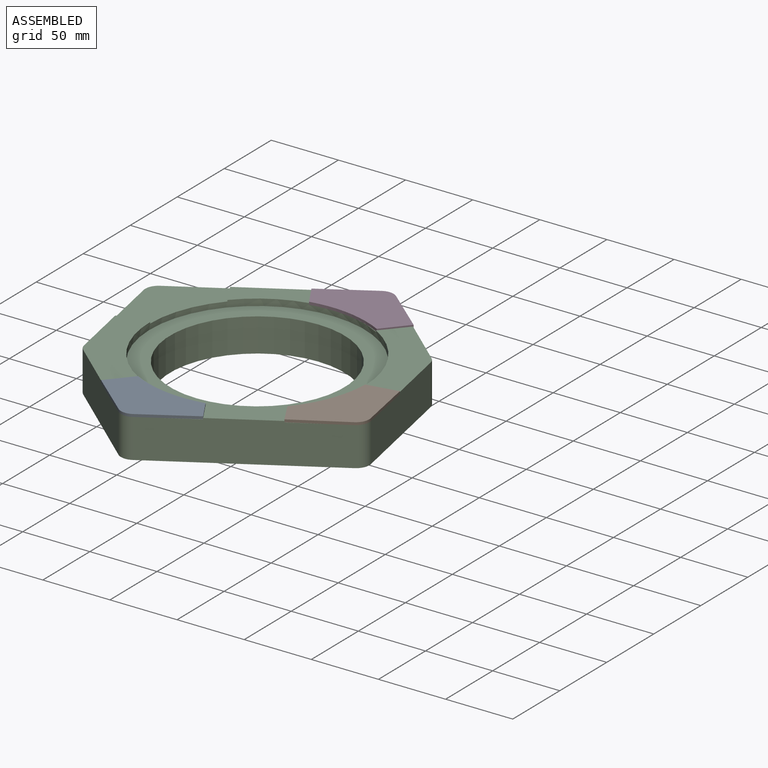
[diagram: assembled view]
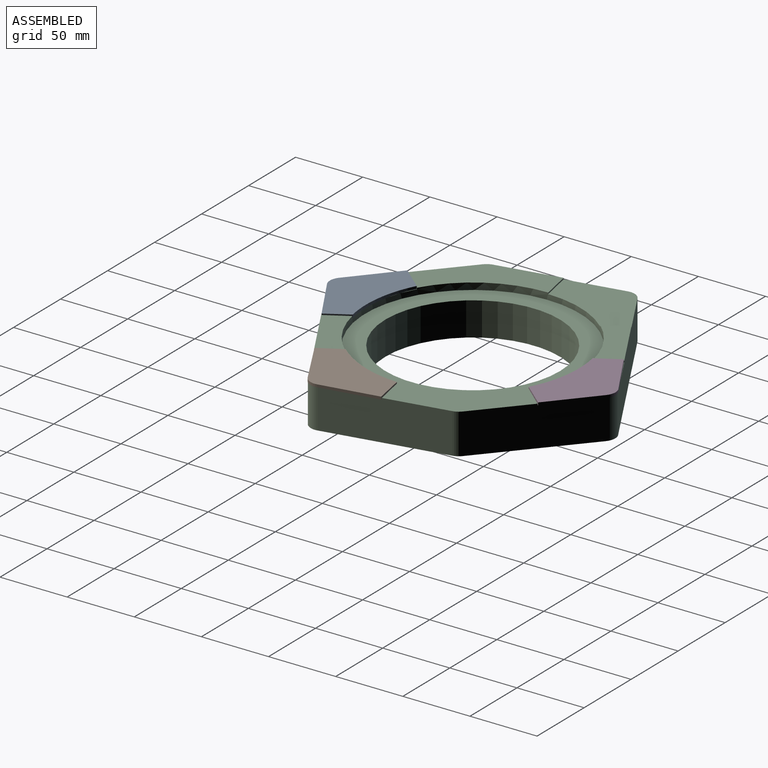
[diagram: assembled view, second angle]
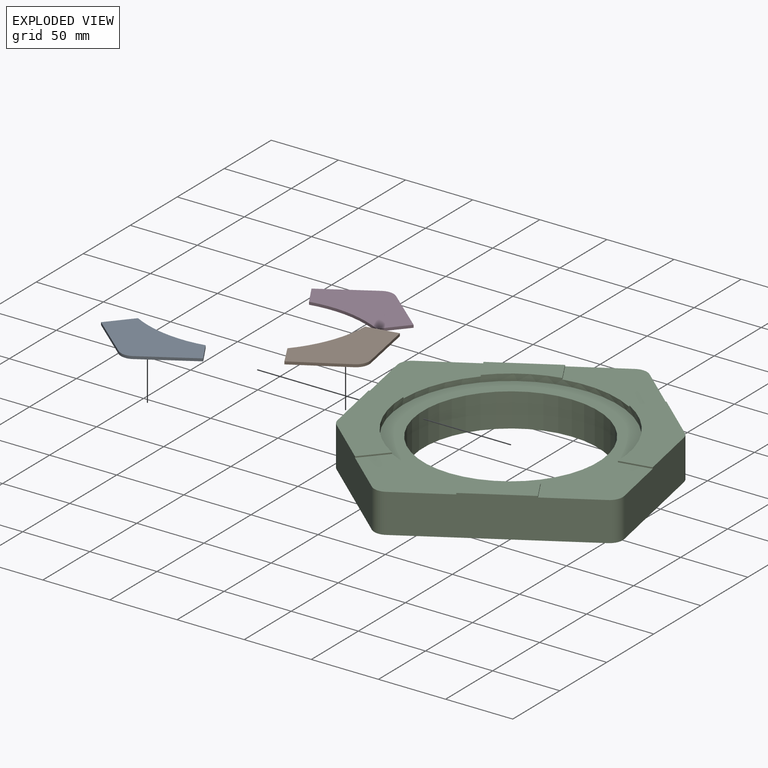
[diagram: exploded view]
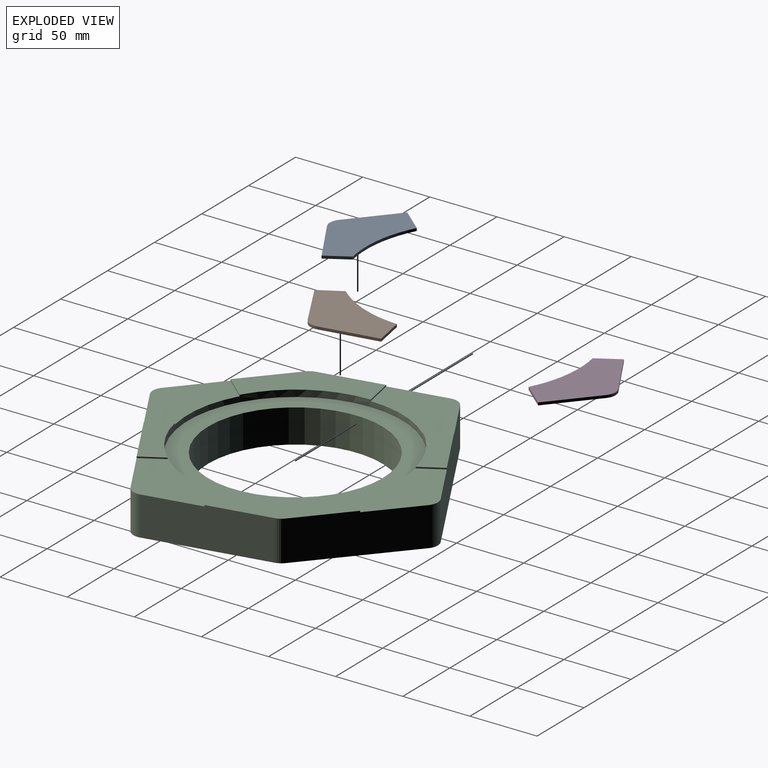
[diagram: exploded view, second angle]
ASSEMBLY  parts=4 mates=3
PART A: 8 faces, bbox 2x81.4x45.7 mm
  f0: plane 34.86x24.92mm, normal (0,-0.58,-0.81), area 85.7mm2, adj f1,f5,f6,f7
  f1: plane 18.92x13.52mm, normal (0,-0.81,0.58), area 46.5mm2, adj f0,f2,f6,f7
  f2: cylinder r=85.49mm len=56.75mm, axis (1,0,0), area 115.9mm2, adj f1,f3,f6,f7
  f3: plane 15.51x11.09mm, normal (0,0.81,0.58), area 38.1mm2, adj f2,f4,f6,f7
  f4: plane 34.86x24.92mm, normal (0,0.58,-0.81), area 85.7mm2, adj f3,f5,f6,f7
  f5: cylinder r=10mm len=11.63mm, axis (1,0,0), area 24.8mm2, adj f0,f4,f6,f7
  f6: plane 81.35x45.7mm, normal (-1,0,0), area 2178.5mm2, adj f0,f1,f2,f3,f4,f5
  f7: plane 81.35x45.7mm, normal (1,0,0), area 2178.5mm2, adj f0,f1,f2,f3,f4,f5
PART B: same geometry as A
PART C: 32 faces, bbox 213.9x190x30 mm
  f0: plane 85x30mm, normal (0.95,-0.32,0), area 2652.2mm2, adj f8,f10,f12,f14,f24,f25
  f1: plane 85x30mm, normal (0.95,0.32,0), area 2652.2mm2, adj f8,f10,f15,f17,f24,f28
  f2: plane 135.7x30mm, normal (0,1,0), area 3985.4mm2, adj f7,f10,f16,f17,f18,f20,f28,f29
  f3: plane 85x30mm, normal (-0.95,0.32,0), area 2652.2mm2, adj f6,f10,f19,f20,f26,f29
  f4: plane 85x30mm, normal (-0.95,-0.32,0), area 2652.2mm2, adj f6,f10,f21,f23,f26,f27
  f5: plane 135.7x30mm, normal (0,-1,0), area 3985.4mm2, adj f9,f10,f13,f14,f22,f23,f25,f27
  f6: plane 95.38x37.75mm, normal (0,0,1), area 2122.2mm2, adj f3,f4,f19,f21,f26,f30
  f7: plane 50x19.01mm, normal (0,0,1), area 816.1mm2, adj f2,f16,f18,f30
  f8: plane 95.38x37.75mm, normal (0,0,1), area 2122.2mm2, adj f0,f1,f12,f15,f24,f30
  f9: plane 50x19.01mm, normal (0,0,1), area 816.1mm2, adj f5,f13,f22,f30
  f10: plane 213.86x190mm, normal (0,0,-1), area 21361.6mm2, adj f0,f1,f2,f3,f4,f5,f11,f24
  f11: cylinder r=65mm len=130mm, axis (0,0,-1), area 10210.2mm2, adj f10,f31
  f12: plane 22x7.53mm, normal (-0.32,-0.95,0), area 23.3mm2, adj f0,f8,f14,f30
  f13: plane 19.01x1mm, normal (1,0,0), area 19mm2, adj f5,f9,f14,f30
  f14: plane 66.18x54.83mm, normal (0,0,1), area 2163mm2, adj f0,f5,f12,f13,f25,f30
  f15: plane 22x7.53mm, normal (-0.32,0.95,0), area 23.3mm2, adj f1,f8,f17,f30
  f16: plane 19.01x1mm, normal (1,0,0), area 19mm2, adj f2,f7,f17,f30
  f17: plane 66.18x54.83mm, normal (0,0,1), area 2163mm2, adj f1,f2,f15,f16,f28,f30
  f18: plane 19.01x1mm, normal (-1,0,0), area 19mm2, adj f2,f7,f20,f30
  f19: plane 22x7.53mm, normal (0.32,0.95,0), area 23.3mm2, adj f3,f6,f20,f30
  f20: plane 66.18x54.83mm, normal (0,0,1), area 2163mm2, adj f2,f3,f18,f19,f29,f30
  f21: plane 22x7.53mm, normal (0.32,-0.95,0), area 23.3mm2, adj f4,f6,f23,f30
  f22: plane 19.01x1mm, normal (-1,0,0), area 19mm2, adj f5,f9,f23,f30
  f23: plane 66.18x54.83mm, normal (0,0,1), area 2163mm2, adj f4,f5,f21,f22,f27,f30
  f24: cylinder r=10mm len=30mm, axis (0,0,1), area 197.8mm2, adj f0,f1,f8,f10
  f25: cylinder r=10mm len=29mm, axis (0,0,-1), area 359.9mm2, adj f0,f5,f10,f14
  f26: cylinder r=10mm len=30mm, axis (0,0,1), area 197.8mm2, adj f3,f4,f6,f10
  f27: cylinder r=10mm len=29mm, axis (0,0,1), area 359.9mm2, adj f4,f5,f10,f23
  f28: cylinder r=10mm len=29mm, axis (0,0,-1), area 359.9mm2, adj f1,f2,f10,f17
  f29: cylinder r=10mm len=29mm, axis (0,0,1), area 359.9mm2, adj f2,f3,f10,f20
  f30: cylinder r=80mm len=160mm, axis (0,0,1), area 2280.6mm2, adj f6,f7,f8,f9,f12,f13,f14,f15
  f31: plane 160x160mm, normal (0,0,1), area 6833mm2, adj f11,f30
PART D: same geometry as A
PLACE A rot(axis=(-0.59,-0.54,-0.59),122.9deg) t=(-408.26,-34.65,17.66)mm
PLACE B rot(axis=(-0.7,0.15,0.7),162.4deg) t=(-232.9,66.6,-283.34)mm
PLACE C rot(axis=(0,0,1),30deg) t=(-387.03,131.08,-212.84)mm
PLACE D rot(axis=(0.56,-0.61,0.56),117.2deg) t=(-365.81,296.8,17.66)mm
MATE fastened A.f6 <-> C.f23  axis (0,0,-1) through (-402.4,38.2,-133.84)mm
MATE fastened D.f6 <-> C.f17  axis (0,0,-1) through (-371.67,223.95,-133.84)mm
MATE fastened B.f7 <-> C.f14  axis (0,0,-1) through (-298.92,97.95,-133.84)mm
